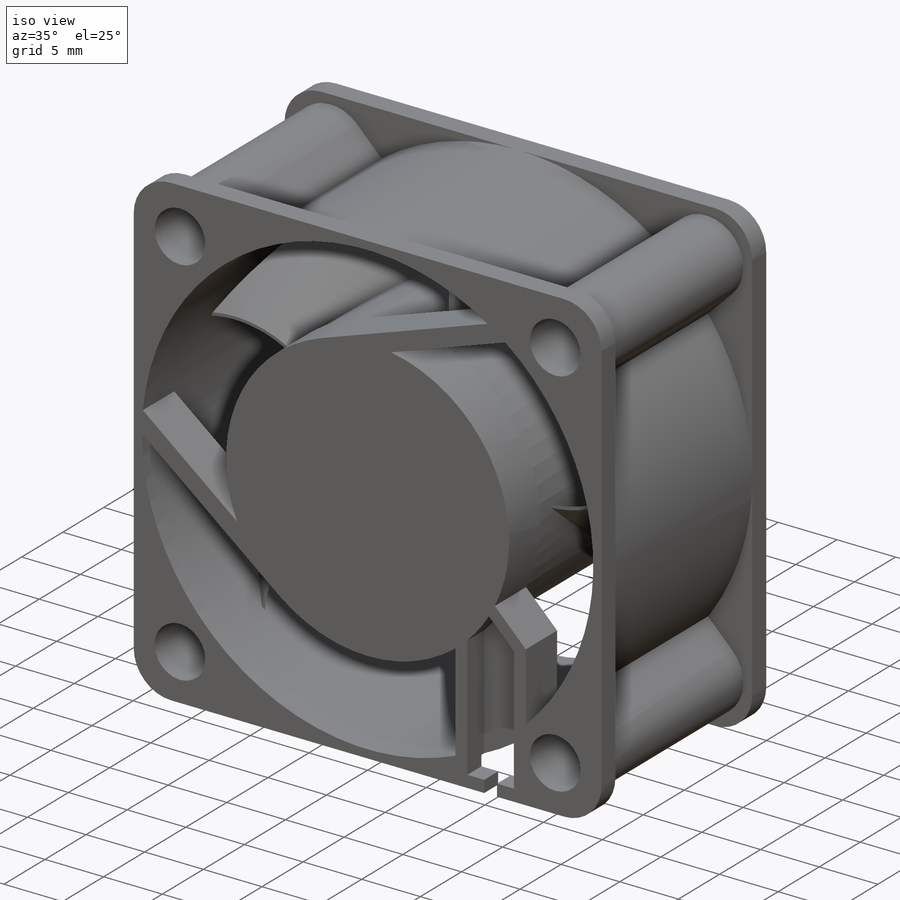
[diagram: iso view]
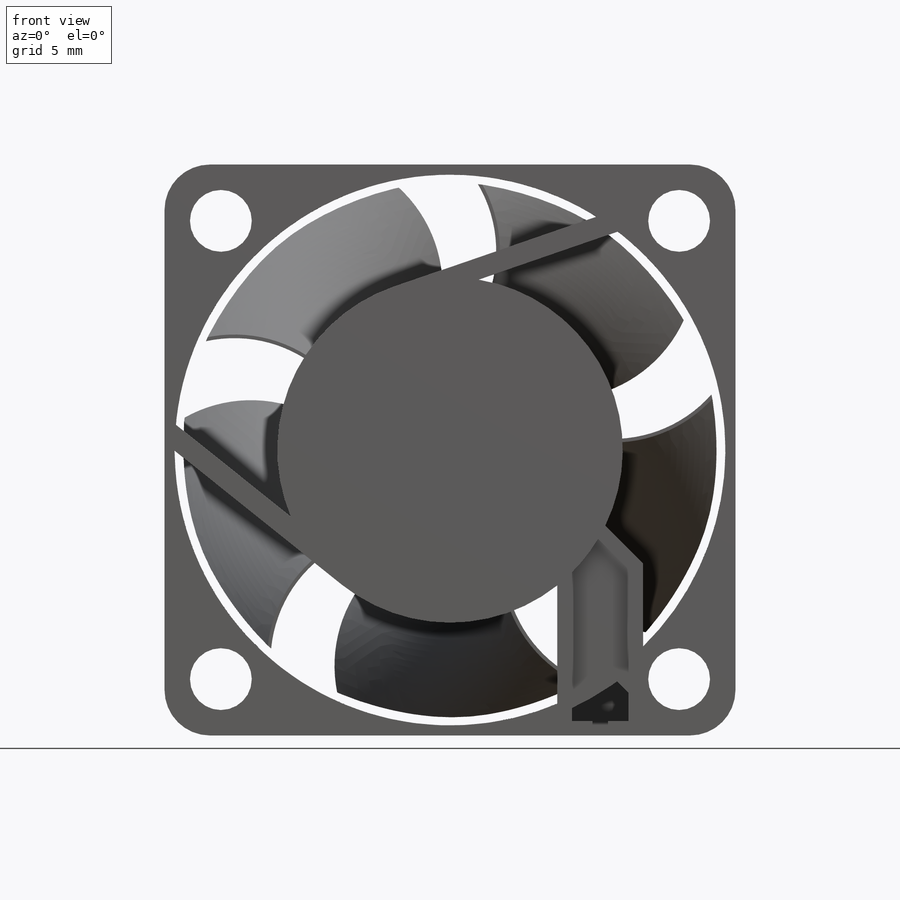
[diagram: front view]
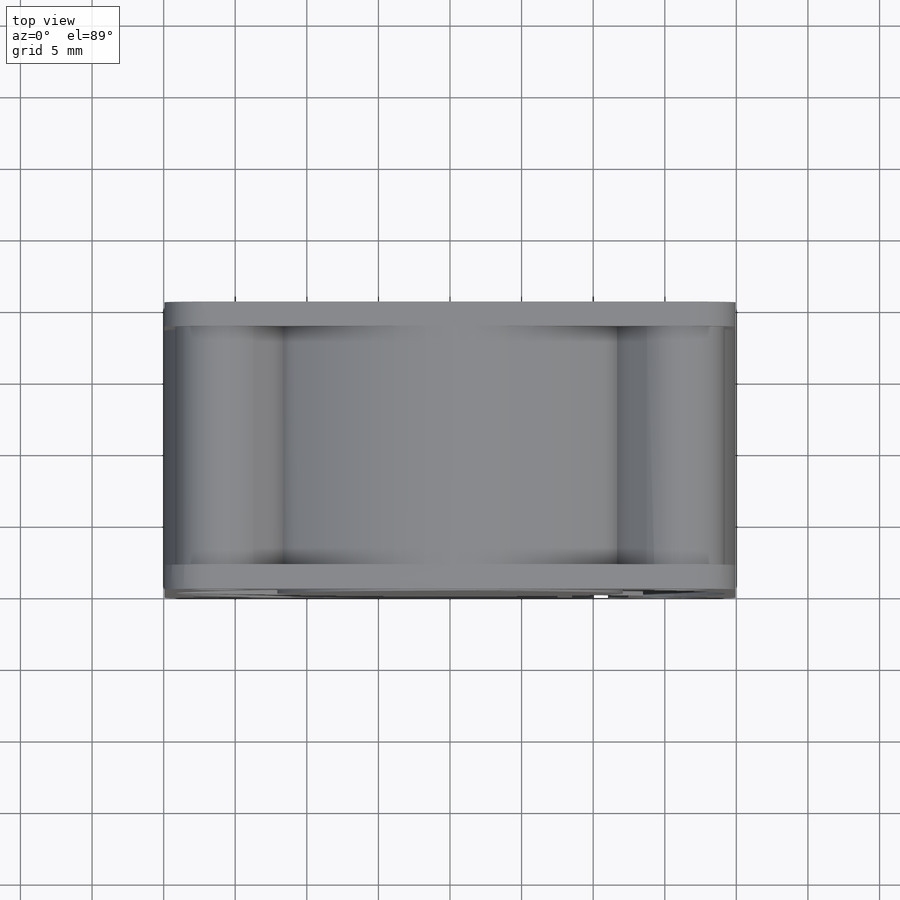
[diagram: top view]
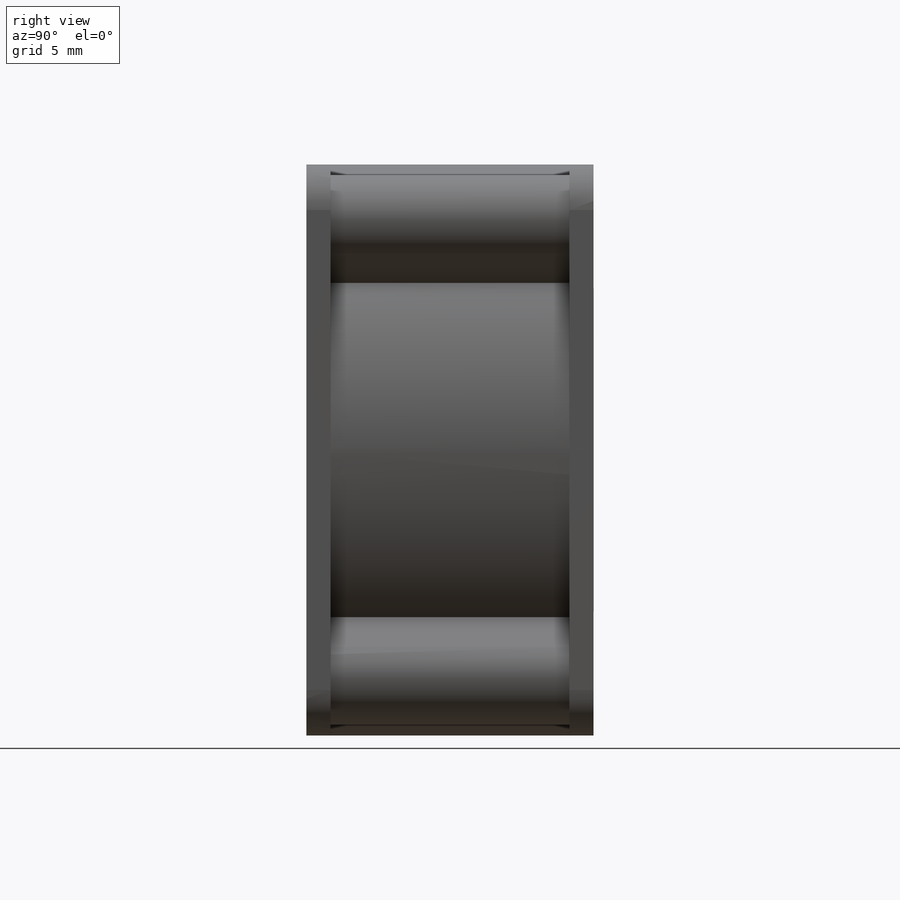
[diagram: right view]
SOLIDWORKS PART (.sldprt)
format: sldprt  version: not decoded by parser v0  size: 972,288 bytes
history: native  units: mm
features: sketch x13, extrude x6, plane x4, pattern_circular x2, cut_extrude x2, fillet x2, material x1 (+13 scaffold rows collapsed)
feature tree (43):
  scaffold x13  (default folders/planes/origin — collapsed)
  material  "Material <not specified>"
  sketch  "Sketch1"  dims[c1.D1=12.065mm c1.D21=3.175mm c1.D22=4.318mm c1.D27=3.175mm c1.D28=3.175mm c1.D29=3.175mm c1.D32=4.318mm c1.D37=4.318mm c1.D38=19.2405mm c1.D39=3.175mm c1.D40=12.065mm c2.D37=4.318mm c2.D38=19.2405mm c2.D39=3.175mm c2.D40=12.065mm c3.D37=12.065mm c3.D2=~2.005809mm c3.D3=~5.283262mm c3.D4=~19.240446mm c3.D5=~7.543292mm c3.D6=~3.587859mm c3.D7=~11.404889mm c3.D8=~10.231646mm c3.D9=1.016mm c3.D10=~8.553429mm c3.D11=~8.265335mm c3.D12=~1.201494mm c3.D13=1.4351mm c3.D14=1.0922mm c3.D15=~12.708334mm c3.D16=~3.012439mm c3.D17=1.016mm c3.D18=~1.059707mm c3.D19=4.9784mm c3.D20=~10.578218mm c3.D23=16.002mm c3.D24=16.002mm c3.D25=0.762mm c3.D26=0.762mm c3.D30=16.002mm c3.D31=16.002mm c3.D33=0.762mm c3.D34=0.762mm c3.D35=~1.077631mm c4.D15=39.878mm c4.D36=39.878mm c4.D1=0.0mm c4.D2=0.0mm]
  extrude  "Extrude5"  Depth=1.7mm
  sketch  "Sketch6"  dims[D1=23.88mm]
  extrude  "Extrude6"  Depth=18.37mm
  plane  "Plane3"  Offset=0.76mm
  plane  "Plane4"  Offset=5.33mm
  plane  "Plane5"  Offset=7.75mm
  sketch  "Sketch7"  dims[c1.D2=~11.937588mm c1.D4=~11.937588mm c1.D8=~18.780147mm c1.D1=~11.925493mm c1.D3=~11.911361mm c2.D4=15.0mm c2.D5=~3.090628mm c2.D6=~3.261035mm c2.D7=~3.572122mm c2.D9=~3.32407mm c2.D1=0.0mm]
  sketch  "Sketch9"  dims[c1.D5=~18.780147mm c1.D3=~11.938002mm c2.D3=~53.998119deg c2.D1=~11.937588mm c2.D2=~11.937588mm c3.D2=~30.798678deg c3.D3=~0.254029mm c3.D4=~5.608993mm c3.D6=~0.247043mm c3.D7=~4.254485mm c3.D8=~0.19662mm c3.D1=0.0mm c4.D2=0.0mm]
  sketch  "Sketch8"  dims[c1.D8=~18.779234mm c1.D1=~11.938002mm c1.D2=10.1015mm c2.D2=~26.998119deg c2.D3=~0.254001mm c2.D4=~6.95273mm c2.D5=~1.23126mm c2.D6=~0.287016mm c2.D7=~0.131175mm c2.D1=0.0mm]
  pattern_circular  "CirPattern1"  Count=5 Angle=72deg
  sketch  "Sketch10"  dims[c1.D1=6.36mm c1.D2=39.88mm c1.D3=38.48mm c1.D4=~22.630245mm c1.D5=16.002mm c2.D5=90.0deg]
  extrude  "Extrude7"  Depth=18.36mm
  sketch  "Sketch11"  dims[D1=0.0mm]
  extrude  "Extrude8"  Depth=1.7mm
  sketch  "Sketch13"  dims[D1=0.0mm]
  extrude  "Extrude9"  Depth=2.11mm
  sketch  "Sketch14"
  extrude  "Extrude10"  [1 undecoded]
  sketch  "Sketch15"  dims[D1=0.0mm]
  cut_extrude  "Extrude11"  Depth=2.03mm
  fillet  "Fillet1"  Radius=0.76mm
  sketch  "Sketch17"
  cut_extrude  "Extrude13"  [1 undecoded]
  plane  "Plane7"
  sketch  "0_0_Point"  dims[Diameter=2.0mm Width=0.0 Depth=0.0 StubLength=2.0mm]
  sketch  "0_1_Point"
  pattern_circular  "0_1"  [2 undecoded]
  fillet  "Axis3"  Radius=2mm Diameter=2mm Width=0 Depth=0 StubLength=2mm
decode coverage: 19 of 25 modeling features carry decoded parameters
note: ~ marks probable driven/reference dimensions
note: 4 parameter values undecoded
note: suppression state not decoded; provenance and decode notes live in map.json
